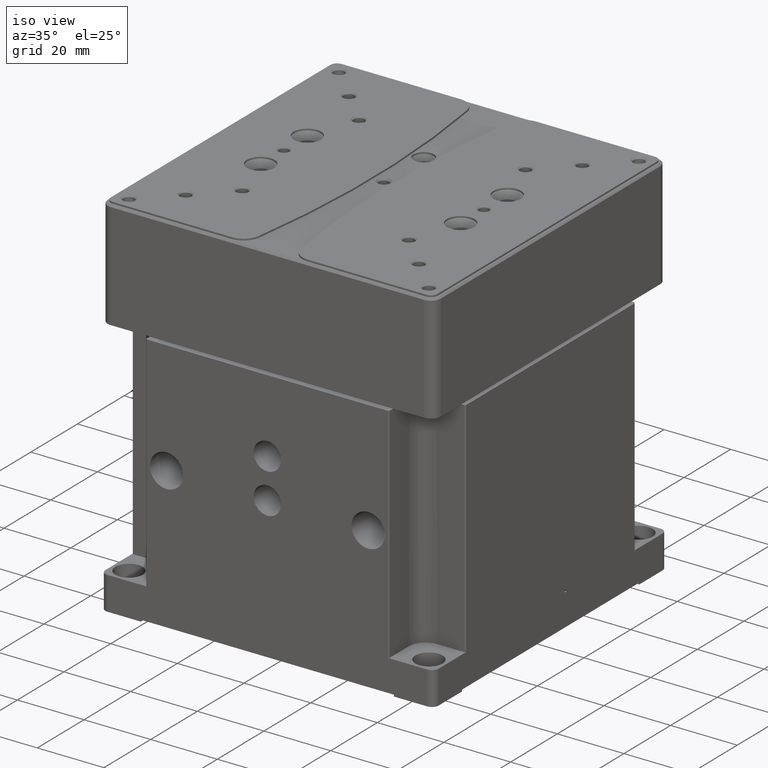
[diagram: clean part render]
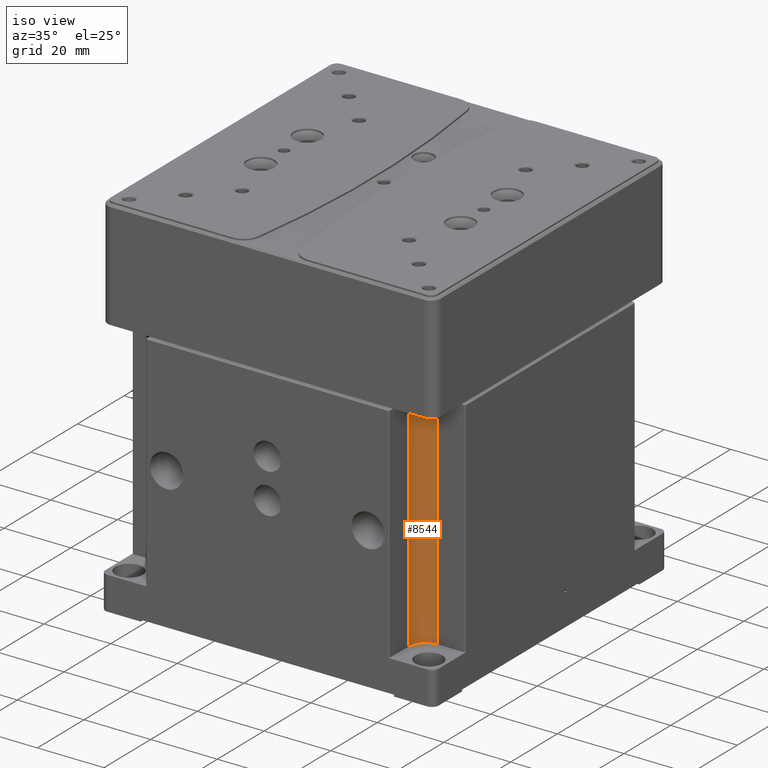
[diagram: same view with one face highlighted and labeled with its STEP entity id]
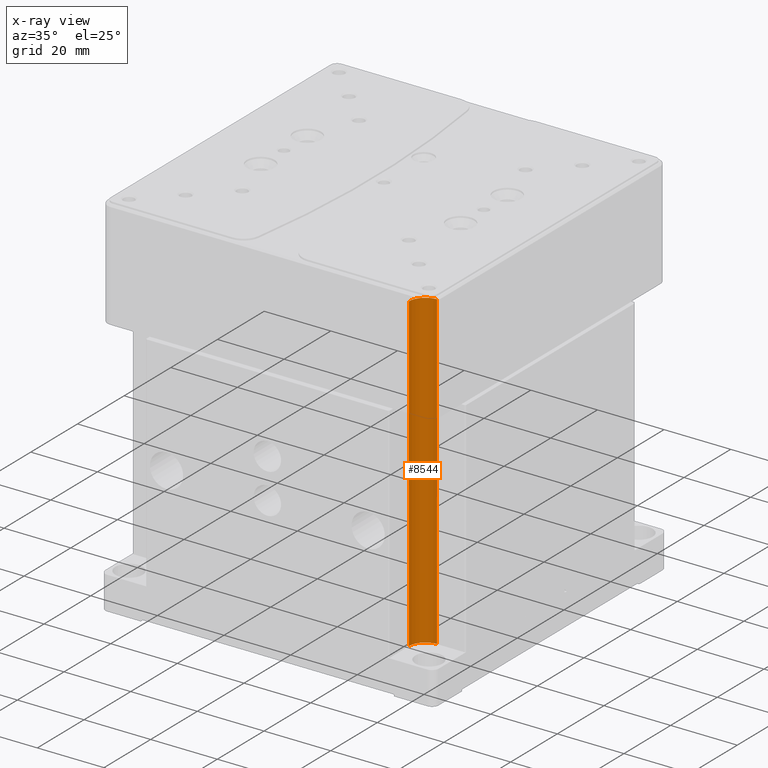
[diagram: x-ray of the same camera — body ghosted, the highlighted face saturated]
A machine part, iso view. The second image highlights one B-rep face of the part: STEP entity #8544.
The next image is the same camera in x-ray: the body ghosted, the highlighted face saturated — about 0% of this face is hidden behind the body in this view.
In plain terms, the highlighted cylindrical surface (edge-blend (fillet) strip) has radius 5 mm, axis along (0, 0, 1).
Its self-contained STEP definition (entity closure, byte-faithful):
#134 = CARTESIAN_POINT ( 'NONE',  ( 41.49999999999999289, -41.50000000000000000, 0.000000000000000000 ) ) ;
#145 = EDGE_CURVE ( 'NONE', #3253, #1351, #32987, .T. ) ;
#1190 = ORIENTED_EDGE ( 'NONE', *, *, #36521, .F. ) ;
#1351 = VERTEX_POINT ( 'NONE', #14449 ) ;
#3253 = VERTEX_POINT ( 'NONE', #4370 ) ;
#3795 = DIRECTION ( 'NONE',  ( 1.000000000000000000, 0.000000000000000000, 0.000000000000000000 ) ) ;
#4370 = CARTESIAN_POINT ( 'NONE',  ( 36.50000000000000000, -41.50000000000000000, 93.50000000000000000 ) ) ;
#4391 = CARTESIAN_POINT ( 'NONE',  ( 41.49999999999999289, -41.50000000000000000, 93.50000000000000000 ) ) ;
#4632 = EDGE_LOOP ( 'NONE', ( #37168, #17458, #1190, #10606 ) ) ;
#5335 = VECTOR ( 'NONE', #18725, 1000.000000000000000 ) ;
#5808 = LINE ( 'NONE', #22301, #5335 ) ;
#7473 = VERTEX_POINT ( 'NONE', #39358 ) ;
#7482 = EDGE_CURVE ( 'NONE', #28622, #7473, #33336, .T. ) ;
#8544 = ADVANCED_FACE ( 'NONE', ( #31660 ), #21679, .F. ) ;
#10606 = ORIENTED_EDGE ( 'NONE', *, *, #145, .F. ) ;
#13540 = DIRECTION ( 'NONE',  ( -0.000000000000000000, -0.000000000000000000, -1.000000000000000000 ) ) ;
#14449 = CARTESIAN_POINT ( 'NONE',  ( 41.49999999999999289, -36.50000000000000711, 93.50000000000000000 ) ) ;
#15344 = DIRECTION ( 'NONE',  ( 0.000000000000000000, 0.000000000000000000, 1.000000000000000000 ) ) ;
#16673 = DIRECTION ( 'NONE',  ( 1.000000000000000000, 0.000000000000000000, 0.000000000000000000 ) ) ;
#16753 = CARTESIAN_POINT ( 'NONE',  ( 41.49999999999999289, -36.50000000000000711, 0.000000000000000000 ) ) ;
#17313 = DIRECTION ( 'NONE',  ( 1.000000000000000000, 0.000000000000000000, 0.000000000000000000 ) ) ;
#17458 = ORIENTED_EDGE ( 'NONE', *, *, #7482, .F. ) ;
#18725 = DIRECTION ( 'NONE',  ( -0.000000000000000000, -0.000000000000000000, -1.000000000000000000 ) ) ;
#21679 = CYLINDRICAL_SURFACE ( 'NONE', #22526, 4.999999999999997335 ) ;
#21821 = AXIS2_PLACEMENT_3D ( 'NONE', #134, #32579, #16673 ) ;
#22301 = CARTESIAN_POINT ( 'NONE',  ( 41.49999999999999289, -36.50000000000000711, 93.50000000000000000 ) ) ;
#22526 = AXIS2_PLACEMENT_3D ( 'NONE', #4391, #15344, #17313 ) ;
#25146 = EDGE_CURVE ( 'NONE', #3253, #7473, #28699, .T. ) ;
#25503 = CARTESIAN_POINT ( 'NONE',  ( 36.50000000000000000, -41.50000000000000000, 93.50000000000000000 ) ) ;
#27589 = AXIS2_PLACEMENT_3D ( 'NONE', #39409, #13540, #3795 ) ;
#28622 = VERTEX_POINT ( 'NONE', #16753 ) ;
#28699 = LINE ( 'NONE', #25503, #35409 ) ;
#31660 = FACE_OUTER_BOUND ( 'NONE', #4632, .T. ) ;
#32579 = DIRECTION ( 'NONE',  ( 0.000000000000000000, 0.000000000000000000, 1.000000000000000000 ) ) ;
#32987 = CIRCLE ( 'NONE', #27589, 4.999999999999997335 ) ;
#33336 = CIRCLE ( 'NONE', #21821, 4.999999999999997335 ) ;
#35409 = VECTOR ( 'NONE', #38459, 1000.000000000000000 ) ;
#36521 = EDGE_CURVE ( 'NONE', #1351, #28622, #5808, .T. ) ;
#37168 = ORIENTED_EDGE ( 'NONE', *, *, #25146, .T. ) ;
#38459 = DIRECTION ( 'NONE',  ( -0.000000000000000000, -0.000000000000000000, -1.000000000000000000 ) ) ;
#39358 = CARTESIAN_POINT ( 'NONE',  ( 36.50000000000000000, -41.50000000000000000, 0.000000000000000000 ) ) ;
#39409 = CARTESIAN_POINT ( 'NONE',  ( 41.49999999999999289, -41.50000000000000000, 93.50000000000000000 ) ) ;